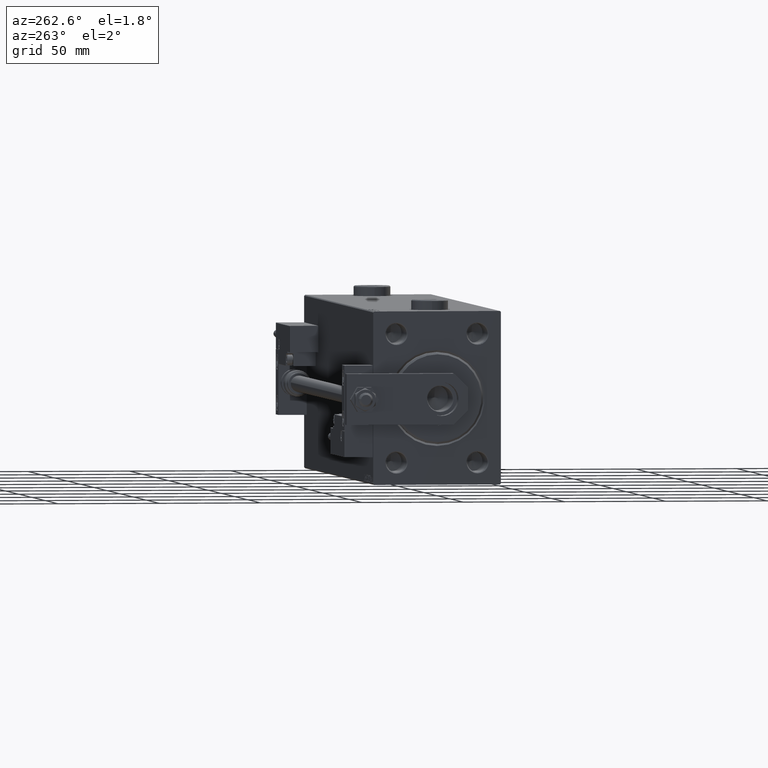
[diagram: clean part render]
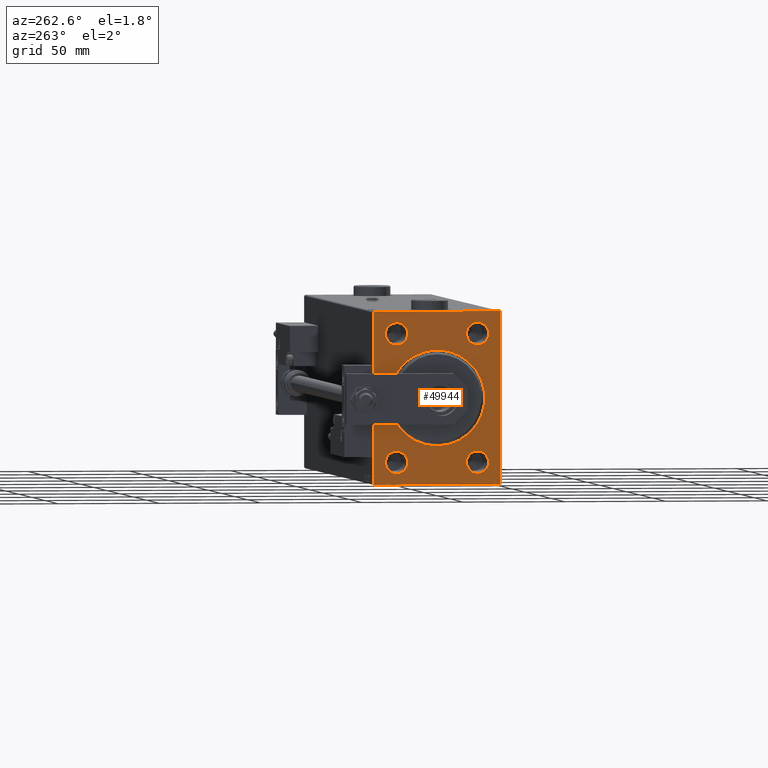
[diagram: same view with one face highlighted and labeled with its STEP entity id]
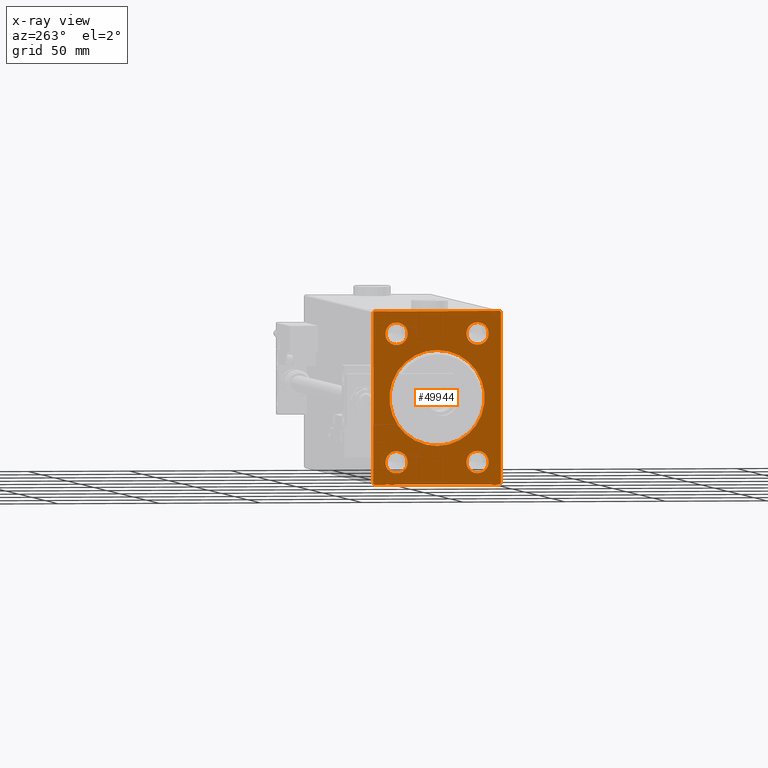
[diagram: x-ray of the same camera — body ghosted, the highlighted face saturated]
A machine part, auxiliary view. The second image highlights one B-rep face of the part: STEP entity #49944.
The next image is the same camera in x-ray: the body ghosted, the highlighted face saturated — about 0% of this face is hidden behind the body in this view.
In plain terms, the highlighted planar face has unit normal (1, 0, 0).
Its self-contained STEP definition (entity closure, byte-faithful):
#165 = DIRECTION ( 'NONE',  ( 0.000000000000000000, 0.000000000000000000, -1.000000000000000000 ) ) ;
#283 = CARTESIAN_POINT ( 'NONE',  ( 0.000000000000000000, -20.00000000000000355, -26.00000000000002132 ) ) ;
#341 = AXIS2_PLACEMENT_3D ( 'NONE', #1954, #18149, #5671 ) ;
#459 = EDGE_LOOP ( 'NONE', ( #29908, #19976 ) ) ;
#1104 = VECTOR ( 'NONE', #165, 1000.000000000000000 ) ;
#1295 = AXIS2_PLACEMENT_3D ( 'NONE', #35230, #15046, #31257 ) ;
#1363 = CARTESIAN_POINT ( 'NONE',  ( 0.000000000000000000, 31.50000000000001421, -42.50000000000000711 ) ) ;
#1534 = CARTESIAN_POINT ( 'NONE',  ( 0.000000000000000000, -30.99999999999994316, 42.49999999999998579 ) ) ;
#1766 = AXIS2_PLACEMENT_3D ( 'NONE', #43049, #18585, #47290 ) ;
#1954 = CARTESIAN_POINT ( 'NONE',  ( 0.000000000000000000, 19.99999999999999645, 31.50000000000000000 ) ) ;
#2058 = CIRCLE ( 'NONE', #341, 5.499999999999976907 ) ;
#2135 = DIRECTION ( 'NONE',  ( -0.000000000000000000, -0.7071067811865426878, 0.7071067811865524577 ) ) ;
#2813 = AXIS2_PLACEMENT_3D ( 'NONE', #50664, #14738, #25938 ) ;
#2909 = VERTEX_POINT ( 'NONE', #31769 ) ;
#3099 = CARTESIAN_POINT ( 'NONE',  ( 0.000000000000000000, 30.99999999999991473, 42.49999999999999289 ) ) ;
#3190 = DIRECTION ( 'NONE',  ( 0.000000000000000000, -0.7071067811865474617, -0.7071067811865474617 ) ) ;
#3206 = VERTEX_POINT ( 'NONE', #283 ) ;
#3415 = FACE_BOUND ( 'NONE', #48417, .T. ) ;
#3494 = CARTESIAN_POINT ( 'NONE',  ( 0.000000000000000000, 31.50000000000000000, 41.99999999999994316 ) ) ;
#3787 = VERTEX_POINT ( 'NONE', #13687 ) ;
#3835 = DIRECTION ( 'NONE',  ( 1.000000000000000000, 0.000000000000000000, 0.000000000000000000 ) ) ;
#4592 = CIRCLE ( 'NONE', #47081, 23.50000000000004619 ) ;
#5196 = EDGE_CURVE ( 'NONE', #3787, #45805, #28456, .T. ) ;
#5669 = VERTEX_POINT ( 'NONE', #42579 ) ;
#5671 = DIRECTION ( 'NONE',  ( 0.000000000000000000, 0.000000000000000000, -1.000000000000000000 ) ) ;
#6332 = VERTEX_POINT ( 'NONE', #42191 ) ;
#7317 = CIRCLE ( 'NONE', #13259, 5.499999999999976907 ) ;
#7656 = CARTESIAN_POINT ( 'NONE',  ( 0.000000000000000000, 0.000000000000000000, 0.000000000000000000 ) ) ;
#7836 = EDGE_CURVE ( 'NONE', #28871, #47143, #24657, .T. ) ;
#7847 = VECTOR ( 'NONE', #26248, 1000.000000000000000 ) ;
#8103 = VECTOR ( 'NONE', #2135, 1000.000000000000000 ) ;
#8396 = LINE ( 'NONE', #28061, #1104 ) ;
#8952 = VERTEX_POINT ( 'NONE', #17936 ) ;
#9586 = LINE ( 'NONE', #1363, #27532 ) ;
#10262 = ORIENTED_EDGE ( 'NONE', *, *, #19898, .F. ) ;
#10649 = EDGE_LOOP ( 'NONE', ( #16966, #43189, #25236, #29608, #10262, #28639, #48769, #43669 ) ) ;
#11386 = FACE_OUTER_BOUND ( 'NONE', #10649, .T. ) ;
#11643 = FACE_BOUND ( 'NONE', #39277, .T. ) ;
#11993 = CARTESIAN_POINT ( 'NONE',  ( 0.000000000000000000, -31.50000000000000000, 41.99999999999990763 ) ) ;
#12139 = EDGE_LOOP ( 'NONE', ( #38292, #25994 ) ) ;
#12252 = DIRECTION ( 'NONE',  ( 1.000000000000000000, 0.000000000000000000, 0.000000000000000000 ) ) ;
#13259 = AXIS2_PLACEMENT_3D ( 'NONE', #27746, #3835, #47958 ) ;
#13630 = CARTESIAN_POINT ( 'NONE',  ( 0.000000000000000000, 2.877919977996285448E-15, -23.50000000000004619 ) ) ;
#13687 = CARTESIAN_POINT ( 'NONE',  ( 0.000000000000000000, -31.50000000000000000, 41.99999999999990763 ) ) ;
#14738 = DIRECTION ( 'NONE',  ( 1.000000000000000000, 0.000000000000000000, 0.000000000000000000 ) ) ;
#14949 = EDGE_CURVE ( 'NONE', #19664, #45805, #29690, .T. ) ;
#15046 = DIRECTION ( 'NONE',  ( 1.000000000000000000, 0.000000000000000000, 0.000000000000000000 ) ) ;
#15147 = CARTESIAN_POINT ( 'NONE',  ( 0.000000000000000000, -20.00000000000000355, 26.00000000000002132 ) ) ;
#15167 = EDGE_CURVE ( 'NONE', #3787, #37932, #8396, .T. ) ;
#15862 = AXIS2_PLACEMENT_3D ( 'NONE', #41522, #36714, #28485 ) ;
#16278 = CARTESIAN_POINT ( 'NONE',  ( 0.000000000000000000, 19.99999999999999645, 26.00000000000002132 ) ) ;
#16431 = EDGE_LOOP ( 'NONE', ( #52037, #28246 ) ) ;
#16652 = ORIENTED_EDGE ( 'NONE', *, *, #28998, .T. ) ;
#16794 = ORIENTED_EDGE ( 'NONE', *, *, #16999, .T. ) ;
#16966 = ORIENTED_EDGE ( 'NONE', *, *, #15167, .F. ) ;
#16999 = EDGE_CURVE ( 'NONE', #5669, #3206, #24883, .T. ) ;
#17230 = CARTESIAN_POINT ( 'NONE',  ( 0.000000000000000000, -31.50000000000000000, -42.50000000000000711 ) ) ;
#17539 = AXIS2_PLACEMENT_3D ( 'NONE', #7656, #40084, #47014 ) ;
#17761 = LINE ( 'NONE', #17230, #41941 ) ;
#17903 = CARTESIAN_POINT ( 'NONE',  ( 0.000000000000000000, 19.99999999999999645, 31.50000000000000000 ) ) ;
#17905 = EDGE_CURVE ( 'NONE', #6332, #2909, #17761, .T. ) ;
#17936 = CARTESIAN_POINT ( 'NONE',  ( 0.000000000000000000, -20.00000000000000355, 36.99999999999997868 ) ) ;
#18149 = DIRECTION ( 'NONE',  ( 1.000000000000000000, 0.000000000000000000, 0.000000000000000000 ) ) ;
#18585 = DIRECTION ( 'NONE',  ( 1.000000000000000000, 0.000000000000000000, 0.000000000000000000 ) ) ;
#19003 = EDGE_CURVE ( 'NONE', #47143, #28871, #4592, .T. ) ;
#19306 = DIRECTION ( 'NONE',  ( -0.000000000000000000, 0.7071067811865671127, -0.7071067811865279218 ) ) ;
#19618 = FACE_BOUND ( 'NONE', #12139, .T. ) ;
#19652 = EDGE_CURVE ( 'NONE', #33242, #47255, #30068, .T. ) ;
#19664 = VERTEX_POINT ( 'NONE', #38096 ) ;
#19898 = EDGE_CURVE ( 'NONE', #34608, #23040, #9586, .T. ) ;
#19976 = ORIENTED_EDGE ( 'NONE', *, *, #41004, .T. ) ;
#20285 = CARTESIAN_POINT ( 'NONE',  ( 0.000000000000000000, 0.000000000000000000, 23.50000000000004619 ) ) ;
#20886 = AXIS2_PLACEMENT_3D ( 'NONE', #37740, #49715, #45731 ) ;
#23040 = VERTEX_POINT ( 'NONE', #3494 ) ;
#23604 = FACE_BOUND ( 'NONE', #459, .T. ) ;
#24008 = EDGE_CURVE ( 'NONE', #48991, #40214, #7317, .T. ) ;
#24254 = EDGE_CURVE ( 'NONE', #34608, #2909, #26055, .T. ) ;
#24657 = CIRCLE ( 'NONE', #1766, 23.50000000000004619 ) ;
#24883 = CIRCLE ( 'NONE', #2813, 5.499999999999976907 ) ;
#25236 = ORIENTED_EDGE ( 'NONE', *, *, #14949, .F. ) ;
#25792 = DIRECTION ( 'NONE',  ( 0.000000000000000000, -1.632680918566406547E-16, 1.000000000000000000 ) ) ;
#25938 = DIRECTION ( 'NONE',  ( 0.000000000000000000, 0.000000000000000000, -1.000000000000000000 ) ) ;
#25994 = ORIENTED_EDGE ( 'NONE', *, *, #46733, .T. ) ;
#26025 = CARTESIAN_POINT ( 'NONE',  ( 0.000000000000000000, 19.99999999999999645, -26.00000000000002132 ) ) ;
#26048 = CIRCLE ( 'NONE', #15862, 5.499999999999976907 ) ;
#26055 = LINE ( 'NONE', #43589, #30290 ) ;
#26248 = DIRECTION ( 'NONE',  ( 0.000000000000000000, -1.000000000000000000, -1.101411730778925171E-16 ) ) ;
#27062 = FACE_BOUND ( 'NONE', #16431, .T. ) ;
#27372 = CARTESIAN_POINT ( 'NONE',  ( 0.000000000000000000, 0.000000000000000000, 0.000000000000000000 ) ) ;
#27532 = VECTOR ( 'NONE', #25792, 1000.000000000000000 ) ;
#27746 = CARTESIAN_POINT ( 'NONE',  ( 0.000000000000000000, 19.99999999999999645, -31.50000000000000000 ) ) ;
#27853 = PLANE ( 'NONE',  #17539 ) ;
#28061 = CARTESIAN_POINT ( 'NONE',  ( 0.000000000000000000, -31.50000000000000000, 42.49999999999998579 ) ) ;
#28246 = ORIENTED_EDGE ( 'NONE', *, *, #7836, .T. ) ;
#28456 = LINE ( 'NONE', #11993, #35608 ) ;
#28485 = DIRECTION ( 'NONE',  ( 0.000000000000000000, 0.000000000000000000, -1.000000000000000000 ) ) ;
#28616 = AXIS2_PLACEMENT_3D ( 'NONE', #51888, #12252, #40176 ) ;
#28639 = ORIENTED_EDGE ( 'NONE', *, *, #24254, .T. ) ;
#28871 = VERTEX_POINT ( 'NONE', #13630 ) ;
#28998 = EDGE_CURVE ( 'NONE', #8952, #45577, #51558, .T. ) ;
#29373 = CIRCLE ( 'NONE', #20886, 5.499999999999976907 ) ;
#29608 = ORIENTED_EDGE ( 'NONE', *, *, #46775, .T. ) ;
#29690 = LINE ( 'NONE', #50451, #7847 ) ;
#29908 = ORIENTED_EDGE ( 'NONE', *, *, #19652, .T. ) ;
#30068 = CIRCLE ( 'NONE', #42011, 5.499999999999976907 ) ;
#30290 = VECTOR ( 'NONE', #3190, 1000.000000000000114 ) ;
#31257 = DIRECTION ( 'NONE',  ( 0.000000000000000000, 0.000000000000000000, -1.000000000000000000 ) ) ;
#31289 = ORIENTED_EDGE ( 'NONE', *, *, #51409, .T. ) ;
#31352 = DIRECTION ( 'NONE',  ( 0.000000000000000000, 0.000000000000000000, -1.000000000000000000 ) ) ;
#31658 = DIRECTION ( 'NONE',  ( -0.000000000000000000, 0.7071067811865279218, 0.7071067811865671127 ) ) ;
#31769 = CARTESIAN_POINT ( 'NONE',  ( 0.000000000000000000, 30.99999999999998579, -42.50000000000000711 ) ) ;
#32763 = CARTESIAN_POINT ( 'NONE',  ( 0.000000000000000000, -31.50000000000000000, -41.99999999999997158 ) ) ;
#33242 = VERTEX_POINT ( 'NONE', #35554 ) ;
#33435 = DIRECTION ( 'NONE',  ( 0.000000000000000000, 1.000000000000000000, 0.000000000000000000 ) ) ;
#34514 = CARTESIAN_POINT ( 'NONE',  ( 0.000000000000000000, 31.50000000000001421, -41.99999999999997868 ) ) ;
#34608 = VERTEX_POINT ( 'NONE', #34514 ) ;
#35230 = CARTESIAN_POINT ( 'NONE',  ( 0.000000000000000000, 19.99999999999999645, -31.50000000000000000 ) ) ;
#35554 = CARTESIAN_POINT ( 'NONE',  ( 0.000000000000000000, 19.99999999999999645, 36.99999999999997868 ) ) ;
#35608 = VECTOR ( 'NONE', #31658, 1000.000000000000000 ) ;
#36714 = DIRECTION ( 'NONE',  ( 1.000000000000000000, 0.000000000000000000, 0.000000000000000000 ) ) ;
#37740 = CARTESIAN_POINT ( 'NONE',  ( 0.000000000000000000, -20.00000000000000355, -31.50000000000000000 ) ) ;
#37932 = VERTEX_POINT ( 'NONE', #32763 ) ;
#38096 = CARTESIAN_POINT ( 'NONE',  ( 0.000000000000000000, 30.99999999999991473, 42.49999999999999289 ) ) ;
#38292 = ORIENTED_EDGE ( 'NONE', *, *, #24008, .T. ) ;
#38525 = CARTESIAN_POINT ( 'NONE',  ( 0.000000000000000000, -30.99999999999997158, -42.50000000000000711 ) ) ;
#39277 = EDGE_LOOP ( 'NONE', ( #52538, #16794 ) ) ;
#39507 = LINE ( 'NONE', #3099, #52243 ) ;
#40084 = DIRECTION ( 'NONE',  ( 1.000000000000000000, 0.000000000000000000, 0.000000000000000000 ) ) ;
#40176 = DIRECTION ( 'NONE',  ( 0.000000000000000000, 0.000000000000000000, -1.000000000000000000 ) ) ;
#40214 = VERTEX_POINT ( 'NONE', #43384 ) ;
#41004 = EDGE_CURVE ( 'NONE', #47255, #33242, #2058, .T. ) ;
#41327 = DIRECTION ( 'NONE',  ( 1.000000000000000000, 0.000000000000000000, 0.000000000000000000 ) ) ;
#41522 = CARTESIAN_POINT ( 'NONE',  ( 0.000000000000000000, -20.00000000000000355, 31.50000000000000000 ) ) ;
#41941 = VECTOR ( 'NONE', #33435, 1000.000000000000000 ) ;
#42011 = AXIS2_PLACEMENT_3D ( 'NONE', #17903, #41327, #50073 ) ;
#42191 = CARTESIAN_POINT ( 'NONE',  ( 0.000000000000000000, -30.99999999999997158, -42.50000000000000711 ) ) ;
#42278 = LINE ( 'NONE', #38525, #8103 ) ;
#42579 = CARTESIAN_POINT ( 'NONE',  ( 0.000000000000000000, -20.00000000000000355, -36.99999999999997868 ) ) ;
#43049 = CARTESIAN_POINT ( 'NONE',  ( 0.000000000000000000, 0.000000000000000000, 0.000000000000000000 ) ) ;
#43189 = ORIENTED_EDGE ( 'NONE', *, *, #5196, .T. ) ;
#43384 = CARTESIAN_POINT ( 'NONE',  ( 0.000000000000000000, 19.99999999999999645, -36.99999999999997868 ) ) ;
#43589 = CARTESIAN_POINT ( 'NONE',  ( 0.000000000000000000, 31.50000000000001421, -41.99999999999997868 ) ) ;
#43608 = DIRECTION ( 'NONE',  ( 1.000000000000000000, 0.000000000000000000, 0.000000000000000000 ) ) ;
#43669 = ORIENTED_EDGE ( 'NONE', *, *, #47786, .T. ) ;
#44570 = CIRCLE ( 'NONE', #1295, 5.499999999999976907 ) ;
#45577 = VERTEX_POINT ( 'NONE', #15147 ) ;
#45731 = DIRECTION ( 'NONE',  ( 0.000000000000000000, 0.000000000000000000, -1.000000000000000000 ) ) ;
#45805 = VERTEX_POINT ( 'NONE', #1534 ) ;
#46733 = EDGE_CURVE ( 'NONE', #40214, #48991, #44570, .T. ) ;
#46775 = EDGE_CURVE ( 'NONE', #19664, #23040, #39507, .T. ) ;
#47014 = DIRECTION ( 'NONE',  ( 0.000000000000000000, 0.000000000000000000, -1.000000000000000000 ) ) ;
#47081 = AXIS2_PLACEMENT_3D ( 'NONE', #27372, #43608, #31352 ) ;
#47143 = VERTEX_POINT ( 'NONE', #20285 ) ;
#47255 = VERTEX_POINT ( 'NONE', #16278 ) ;
#47290 = DIRECTION ( 'NONE',  ( 0.000000000000000000, 0.000000000000000000, -1.000000000000000000 ) ) ;
#47786 = EDGE_CURVE ( 'NONE', #6332, #37932, #42278, .T. ) ;
#47958 = DIRECTION ( 'NONE',  ( 0.000000000000000000, 0.000000000000000000, -1.000000000000000000 ) ) ;
#48417 = EDGE_LOOP ( 'NONE', ( #16652, #31289 ) ) ;
#48519 = EDGE_CURVE ( 'NONE', #3206, #5669, #29373, .T. ) ;
#48769 = ORIENTED_EDGE ( 'NONE', *, *, #17905, .F. ) ;
#48991 = VERTEX_POINT ( 'NONE', #26025 ) ;
#49715 = DIRECTION ( 'NONE',  ( 1.000000000000000000, 0.000000000000000000, 0.000000000000000000 ) ) ;
#49944 = ADVANCED_FACE ( 'NONE', ( #27062, #11643, #3415, #23604, #19618, #11386 ), #27853, .F. ) ;
#50073 = DIRECTION ( 'NONE',  ( 0.000000000000000000, 0.000000000000000000, -1.000000000000000000 ) ) ;
#50451 = CARTESIAN_POINT ( 'NONE',  ( 0.000000000000000000, 31.50000000000000000, 42.49999999999999289 ) ) ;
#50664 = CARTESIAN_POINT ( 'NONE',  ( 0.000000000000000000, -20.00000000000000355, -31.50000000000000000 ) ) ;
#51409 = EDGE_CURVE ( 'NONE', #45577, #8952, #26048, .T. ) ;
#51558 = CIRCLE ( 'NONE', #28616, 5.499999999999976907 ) ;
#51888 = CARTESIAN_POINT ( 'NONE',  ( 0.000000000000000000, -20.00000000000000355, 31.50000000000000000 ) ) ;
#52037 = ORIENTED_EDGE ( 'NONE', *, *, #19003, .T. ) ;
#52243 = VECTOR ( 'NONE', #19306, 1000.000000000000000 ) ;
#52538 = ORIENTED_EDGE ( 'NONE', *, *, #48519, .T. ) ;